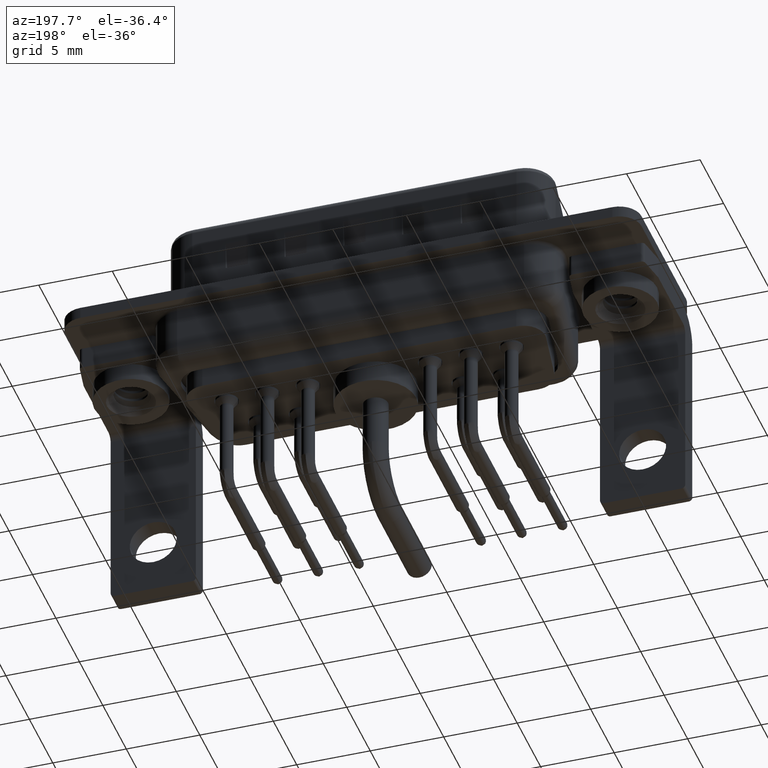
[diagram: clean part render]
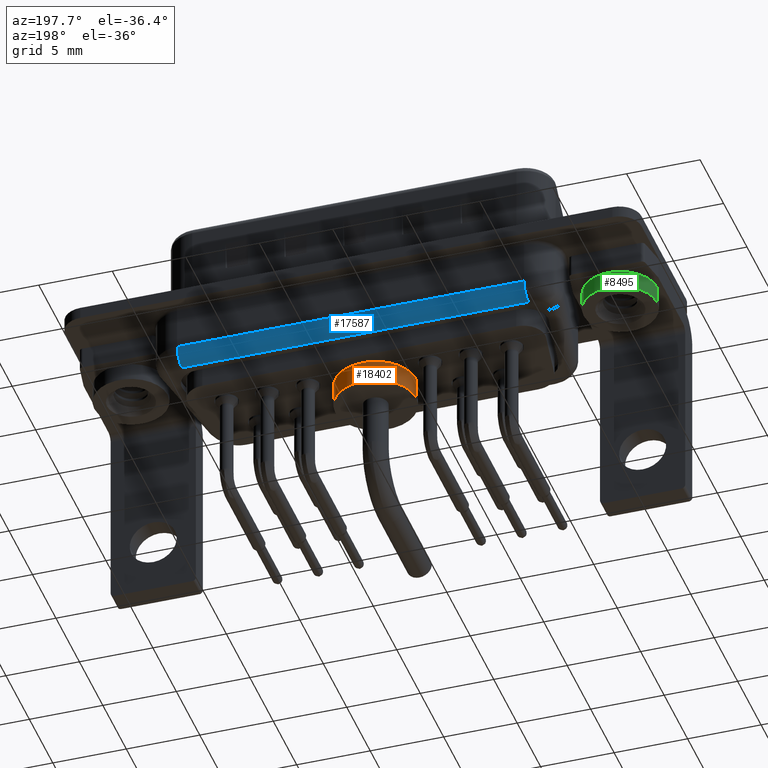
[diagram: same view with three faces highlighted in distinct colors, each labeled with its STEP entity id]
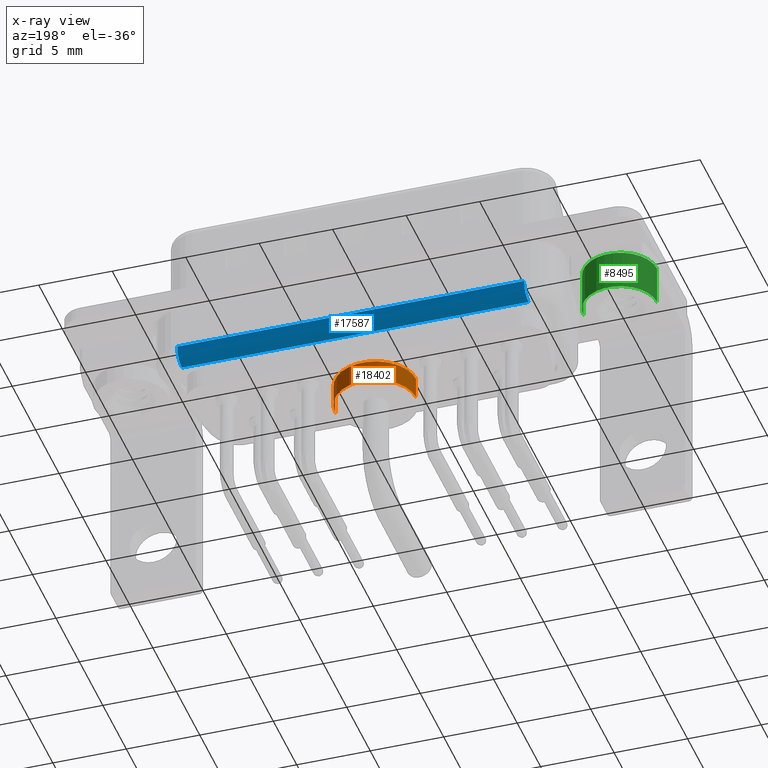
[diagram: x-ray of the same camera — body ghosted, the three highlighted faces saturated]
A machine part, auxiliary view with three faces highlighted in distinct colors.
The next image is the same camera in x-ray (body ghosted, the three faces saturated) — at least one of them is partly hidden behind the body in this view.
Their STEP definitions:

[orange] entity #18402 — the highlighted cylindrical surface (partial cylindrical patch) has radius 2.75 mm, axis along (0, 0, 1).
#26 = LINE ( 'NONE', #12674, #5128 ) ;
#167 = DIRECTION ( 'NONE',  ( 1.000000000000000000, 0.0000000000000000000, 0.0000000000000000000 ) ) ;
#932 = VERTEX_POINT ( 'NONE', #22303 ) ;
#1156 = LINE ( 'NONE', #1498, #15353 ) ;
#1498 = CARTESIAN_POINT ( 'NONE',  ( 2.750000000000002665, 0.0000000000000000000, 4.233549705346610459 ) ) ;
#2904 = DIRECTION ( 'NONE',  ( -0.0000000000000000000, -0.0000000000000000000, 1.000000000000000000 ) ) ;
#3156 = DIRECTION ( 'NONE',  ( -0.0000000000000000000, -0.0000000000000000000, 1.000000000000000000 ) ) ;
#3964 = AXIS2_PLACEMENT_3D ( 'NONE', #19760, #9393, #167 ) ;
#4642 = AXIS2_PLACEMENT_3D ( 'NONE', #5496, #22130, #5963 ) ;
#5128 = VECTOR ( 'NONE', #14429, 1000.000000000000000 ) ;
#5496 = CARTESIAN_POINT ( 'NONE',  ( 0.0000000000000000000, 0.0000000000000000000, 0.0000000000000000000 ) ) ;
#5963 = DIRECTION ( 'NONE',  ( 1.000000000000000000, 0.0000000000000000000, 0.0000000000000000000 ) ) ;
#6850 = EDGE_CURVE ( 'NONE', #10355, #932, #1156, .T. ) ;
#7981 = DIRECTION ( 'NONE',  ( 1.000000000000000000, 0.0000000000000000000, 0.0000000000000000000 ) ) ;
#8004 = AXIS2_PLACEMENT_3D ( 'NONE', #15540, #2904, #7981 ) ;
#8143 = ORIENTED_EDGE ( 'NONE', *, *, #6850, .F. ) ;
#8300 = VERTEX_POINT ( 'NONE', #11071 ) ;
#9181 = CIRCLE ( 'NONE', #4642, 2.750000000000004441 ) ;
#9393 = DIRECTION ( 'NONE',  ( -0.0000000000000000000, -0.0000000000000000000, 1.000000000000000000 ) ) ;
#9640 = ORIENTED_EDGE ( 'NONE', *, *, #12155, .F. ) ;
#10343 = CARTESIAN_POINT ( 'NONE',  ( -2.750000000000004885, 3.367778697655227421E-16, 0.0000000000000000000 ) ) ;
#10355 = VERTEX_POINT ( 'NONE', #15095 ) ;
#11071 = CARTESIAN_POINT ( 'NONE',  ( -2.750000000000000000, 3.367778697655223477E-16, 1.500000000000000444 ) ) ;
#12155 = EDGE_CURVE ( 'NONE', #932, #8300, #16306, .T. ) ;
#12451 = ORIENTED_EDGE ( 'NONE', *, *, #13098, .T. ) ;
#12586 = FACE_OUTER_BOUND ( 'NONE', #22126, .T. ) ;
#12674 = CARTESIAN_POINT ( 'NONE',  ( -2.750000000000002665, 3.367778697655224463E-16, 4.233549705346610459 ) ) ;
#13098 = EDGE_CURVE ( 'NONE', #10355, #14912, #9181, .T. ) ;
#14429 = DIRECTION ( 'NONE',  ( -0.0000000000000000000, -0.0000000000000000000, 1.000000000000000000 ) ) ;
#14912 = VERTEX_POINT ( 'NONE', #10343 ) ;
#15095 = CARTESIAN_POINT ( 'NONE',  ( 2.750000000000004441, 0.0000000000000000000, 0.0000000000000000000 ) ) ;
#15353 = VECTOR ( 'NONE', #3156, 1000.000000000000000 ) ;
#15540 = CARTESIAN_POINT ( 'NONE',  ( 0.0000000000000000000, 0.0000000000000000000, 1.500000000000000444 ) ) ;
#16306 = CIRCLE ( 'NONE', #8004, 2.750000000000000000 ) ;
#18226 = CYLINDRICAL_SURFACE ( 'NONE', #3964, 2.750000000000002665 ) ;
#18402 = ADVANCED_FACE ( 'NONE', ( #12586 ), #18226, .T. ) ;
#18817 = ORIENTED_EDGE ( 'NONE', *, *, #18898, .T. ) ;
#18898 = EDGE_CURVE ( 'NONE', #14912, #8300, #26, .T. ) ;
#19760 = CARTESIAN_POINT ( 'NONE',  ( 0.0000000000000000000, 0.0000000000000000000, 4.233549705346610459 ) ) ;
#22126 = EDGE_LOOP ( 'NONE', ( #12451, #18817, #9640, #8143 ) ) ;
#22130 = DIRECTION ( 'NONE',  ( -0.0000000000000000000, -0.0000000000000000000, 1.000000000000000000 ) ) ;
#22303 = CARTESIAN_POINT ( 'NONE',  ( 2.750000000000000000, 0.0000000000000000000, 1.500000000000000444 ) ) ;

[blue] entity #17587 — the highlighted cylindrical surface (edge-blend (fillet) strip) has radius 1 mm, axis along (1, 0, 0).
#1704 = EDGE_LOOP ( 'NONE', ( #6204, #14727, #18120, #9731 ) ) ;
#2860 = CARTESIAN_POINT ( 'NONE',  ( 28.44999999999999574, 5.350000000000002309, -3.499999999999999556 ) ) ;
#3737 = CARTESIAN_POINT ( 'NONE',  ( 28.44999999999999574, 4.350000000000002309, -4.500000000000000000 ) ) ;
#6152 = CARTESIAN_POINT ( 'NONE',  ( 6.031390770746665630, 4.350000000000002309, -3.499999999999999556 ) ) ;
#6204 = ORIENTED_EDGE ( 'NONE', *, *, #9926, .T. ) ;
#6260 = CARTESIAN_POINT ( 'NONE',  ( 28.44999999999999574, 4.350000000000002309, -3.499999999999999556 ) ) ;
#6274 = CYLINDRICAL_SURFACE ( 'NONE', #13550, 1.000000000000000000 ) ;
#7329 = DIRECTION ( 'NONE',  ( 1.000000000000000000, 0.0000000000000000000, 0.0000000000000000000 ) ) ;
#8040 = VECTOR ( 'NONE', #19557, 1000.000000000000000 ) ;
#8044 = FACE_OUTER_BOUND ( 'NONE', #1704, .T. ) ;
#8245 = DIRECTION ( 'NONE',  ( -1.000000000000000000, 0.0000000000000000000, 0.0000000000000000000 ) ) ;
#9531 = CARTESIAN_POINT ( 'NONE',  ( 4.849999999999993427, 4.350000000000002309, -3.499999999999999556 ) ) ;
#9588 = DIRECTION ( 'NONE',  ( 1.000000000000000000, 0.0000000000000000000, 0.0000000000000000000 ) ) ;
#9731 = ORIENTED_EDGE ( 'NONE', *, *, #21139, .F. ) ;
#9886 = DIRECTION ( 'NONE',  ( 0.0000000000000000000, 0.0000000000000000000, 1.000000000000000000 ) ) ;
#9926 = EDGE_CURVE ( 'NONE', #12321, #12061, #16305, .T. ) ;
#10577 = LINE ( 'NONE', #17405, #16356 ) ;
#10748 = AXIS2_PLACEMENT_3D ( 'NONE', #9531, #8245, #9886 ) ;
#11053 = CARTESIAN_POINT ( 'NONE',  ( 4.849999999999993427, 4.350000000000002309, -4.500000000000000000 ) ) ;
#11252 = DIRECTION ( 'NONE',  ( 0.0000000000000000000, 0.0000000000000000000, -1.000000000000000000 ) ) ;
#12035 = CARTESIAN_POINT ( 'NONE',  ( 28.44999999999999574, 5.350000000000002309, -3.499999999999999556 ) ) ;
#12061 = VERTEX_POINT ( 'NONE', #3737 ) ;
#12174 = AXIS2_PLACEMENT_3D ( 'NONE', #6260, #20991, #17242 ) ;
#12321 = VERTEX_POINT ( 'NONE', #2860 ) ;
#13537 = EDGE_CURVE ( 'NONE', #14636, #12061, #10577, .T. ) ;
#13550 = AXIS2_PLACEMENT_3D ( 'NONE', #6152, #9588, #11252 ) ;
#14636 = VERTEX_POINT ( 'NONE', #11053 ) ;
#14727 = ORIENTED_EDGE ( 'NONE', *, *, #13537, .F. ) ;
#16305 = CIRCLE ( 'NONE', #12174, 1.000000000000000000 ) ;
#16356 = VECTOR ( 'NONE', #7329, 1000.000000000000000 ) ;
#17242 = DIRECTION ( 'NONE',  ( 0.0000000000000000000, 0.0000000000000000000, 1.000000000000000000 ) ) ;
#17405 = CARTESIAN_POINT ( 'NONE',  ( 6.031390770746665630, 4.350000000000002309, -4.500000000000000000 ) ) ;
#17587 = ADVANCED_FACE ( 'NONE', ( #8044 ), #6274, .T. ) ;
#18120 = ORIENTED_EDGE ( 'NONE', *, *, #22740, .F. ) ;
#18191 = VERTEX_POINT ( 'NONE', #23199 ) ;
#19557 = DIRECTION ( 'NONE',  ( -1.000000000000000000, -0.0000000000000000000, -0.0000000000000000000 ) ) ;
#20991 = DIRECTION ( 'NONE',  ( -1.000000000000000000, 0.0000000000000000000, 0.0000000000000000000 ) ) ;
#21139 = EDGE_CURVE ( 'NONE', #12321, #18191, #21333, .T. ) ;
#21273 = CIRCLE ( 'NONE', #10748, 1.000000000000000000 ) ;
#21333 = LINE ( 'NONE', #12035, #8040 ) ;
#22740 = EDGE_CURVE ( 'NONE', #18191, #14636, #21273, .T. ) ;
#23199 = CARTESIAN_POINT ( 'NONE',  ( 4.849999999999993427, 5.350000000000002309, -3.499999999999999556 ) ) ;

[green] entity #8495 — the highlighted cylindrical surface (partial cylindrical patch) has radius 2.5 mm, axis along (0, 0, 1).
#715 = VERTEX_POINT ( 'NONE', #5331 ) ;
#2829 = VERTEX_POINT ( 'NONE', #20848 ) ;
#3195 = ORIENTED_EDGE ( 'NONE', *, *, #14516, .F. ) ;
#3506 = EDGE_CURVE ( 'NONE', #14683, #22543, #7773, .T. ) ;
#4691 = EDGE_CURVE ( 'NONE', #22543, #2829, #17104, .T. ) ;
#4780 = CARTESIAN_POINT ( 'NONE',  ( 2.500000000000000000, 0.0000000000000000000, -3.100000000000000533 ) ) ;
#5331 = CARTESIAN_POINT ( 'NONE',  ( 2.500000000000000000, 0.0000000000000000000, -0.4000000000000000777 ) ) ;
#5995 = DIRECTION ( 'NONE',  ( -0.0000000000000000000, -0.0000000000000000000, 1.000000000000000000 ) ) ;
#6352 = CARTESIAN_POINT ( 'NONE',  ( 0.0000000000000000000, 0.0000000000000000000, 0.5806333143474410319 ) ) ;
#6689 = AXIS2_PLACEMENT_3D ( 'NONE', #6352, #5995, #15330 ) ;
#6760 = VECTOR ( 'NONE', #10097, 1000.000000000000000 ) ;
#6923 = DIRECTION ( 'NONE',  ( 1.000000000000000000, 0.0000000000000000000, 0.0000000000000000000 ) ) ;
#7395 = CARTESIAN_POINT ( 'NONE',  ( 0.0000000000000000000, 0.0000000000000000000, -0.4000000000000000777 ) ) ;
#7593 = CIRCLE ( 'NONE', #7971, 2.500000000000000000 ) ;
#7773 = CIRCLE ( 'NONE', #14142, 2.500000000000000000 ) ;
#7867 = DIRECTION ( 'NONE',  ( 1.000000000000000000, 0.0000000000000000000, 0.0000000000000000000 ) ) ;
#7971 = AXIS2_PLACEMENT_3D ( 'NONE', #7395, #16832, #7867 ) ;
#8208 = LINE ( 'NONE', #11736, #6760 ) ;
#8270 = DIRECTION ( 'NONE',  ( -0.0000000000000000000, -0.0000000000000000000, 1.000000000000000000 ) ) ;
#8495 = ADVANCED_FACE ( 'NONE', ( #11555 ), #13437, .T. ) ;
#10097 = DIRECTION ( 'NONE',  ( -0.0000000000000000000, -0.0000000000000000000, 1.000000000000000000 ) ) ;
#11070 = CARTESIAN_POINT ( 'NONE',  ( -2.500000000000000000, 3.061616997868383634E-16, -3.100000000000000533 ) ) ;
#11555 = FACE_OUTER_BOUND ( 'NONE', #14050, .T. ) ;
#11736 = CARTESIAN_POINT ( 'NONE',  ( 2.500000000000000000, 0.0000000000000000000, 0.5806333143474410319 ) ) ;
#12697 = DIRECTION ( 'NONE',  ( -0.0000000000000000000, -0.0000000000000000000, 1.000000000000000000 ) ) ;
#13437 = CYLINDRICAL_SURFACE ( 'NONE', #6689, 2.500000000000000000 ) ;
#14050 = EDGE_LOOP ( 'NONE', ( #16640, #15769, #3195, #22645 ) ) ;
#14142 = AXIS2_PLACEMENT_3D ( 'NONE', #23308, #12697, #6923 ) ;
#14516 = EDGE_CURVE ( 'NONE', #715, #2829, #7593, .T. ) ;
#14683 = VERTEX_POINT ( 'NONE', #4780 ) ;
#15330 = DIRECTION ( 'NONE',  ( 1.000000000000000000, 0.0000000000000000000, 0.0000000000000000000 ) ) ;
#15769 = ORIENTED_EDGE ( 'NONE', *, *, #4691, .T. ) ;
#16433 = EDGE_CURVE ( 'NONE', #14683, #715, #8208, .T. ) ;
#16640 = ORIENTED_EDGE ( 'NONE', *, *, #3506, .T. ) ;
#16832 = DIRECTION ( 'NONE',  ( -0.0000000000000000000, -0.0000000000000000000, 1.000000000000000000 ) ) ;
#17104 = LINE ( 'NONE', #18752, #20565 ) ;
#18752 = CARTESIAN_POINT ( 'NONE',  ( -2.500000000000000000, 3.061616997868383141E-16, 0.5806333143474410319 ) ) ;
#20565 = VECTOR ( 'NONE', #8270, 1000.000000000000000 ) ;
#20848 = CARTESIAN_POINT ( 'NONE',  ( -2.500000000000000000, 3.061616997868383634E-16, -0.4000000000000000777 ) ) ;
#22543 = VERTEX_POINT ( 'NONE', #11070 ) ;
#22645 = ORIENTED_EDGE ( 'NONE', *, *, #16433, .F. ) ;
#23308 = CARTESIAN_POINT ( 'NONE',  ( 0.0000000000000000000, 0.0000000000000000000, -3.100000000000000533 ) ) ;